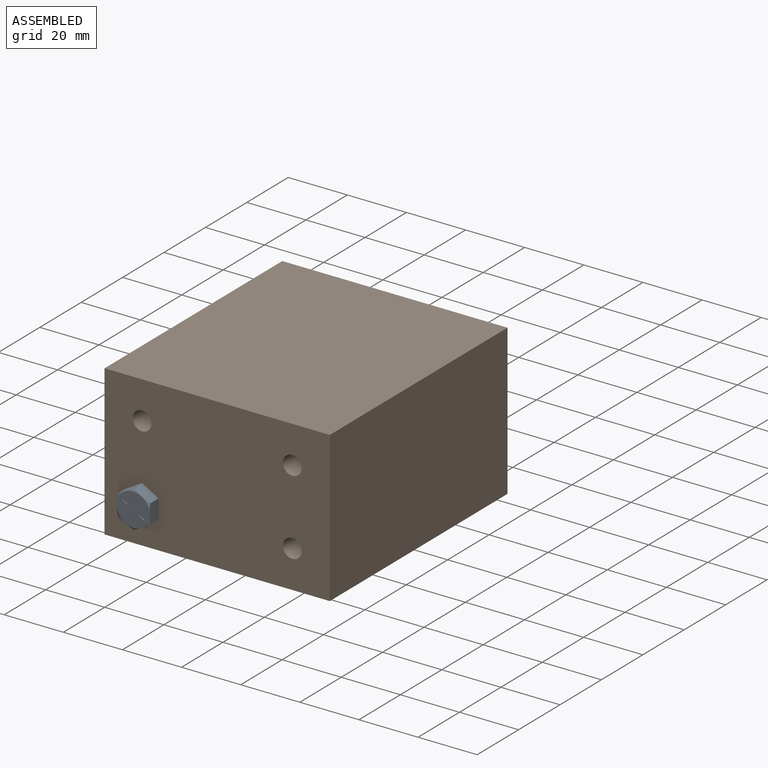
[diagram: assembled view]
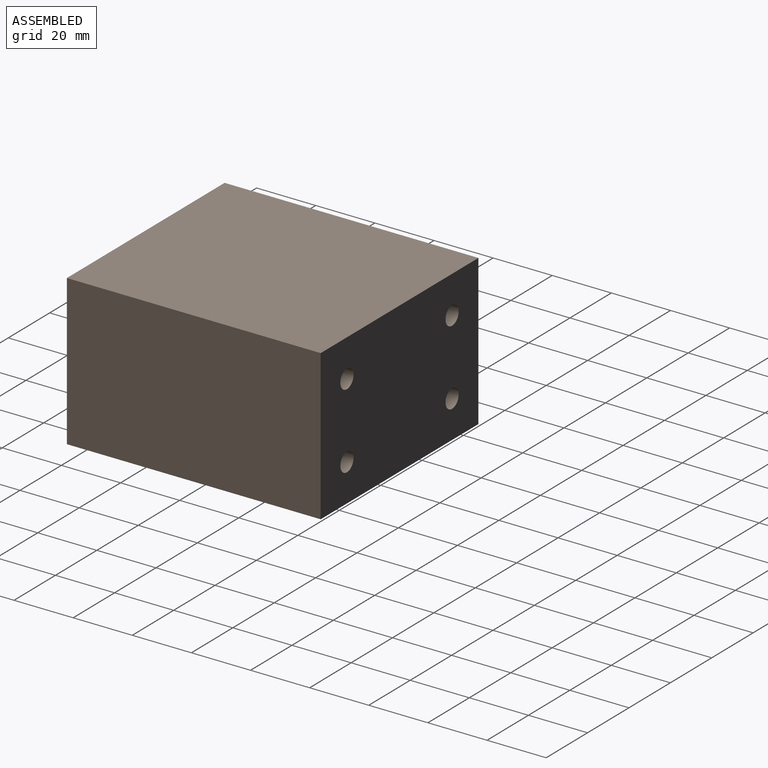
[diagram: assembled view, second angle]
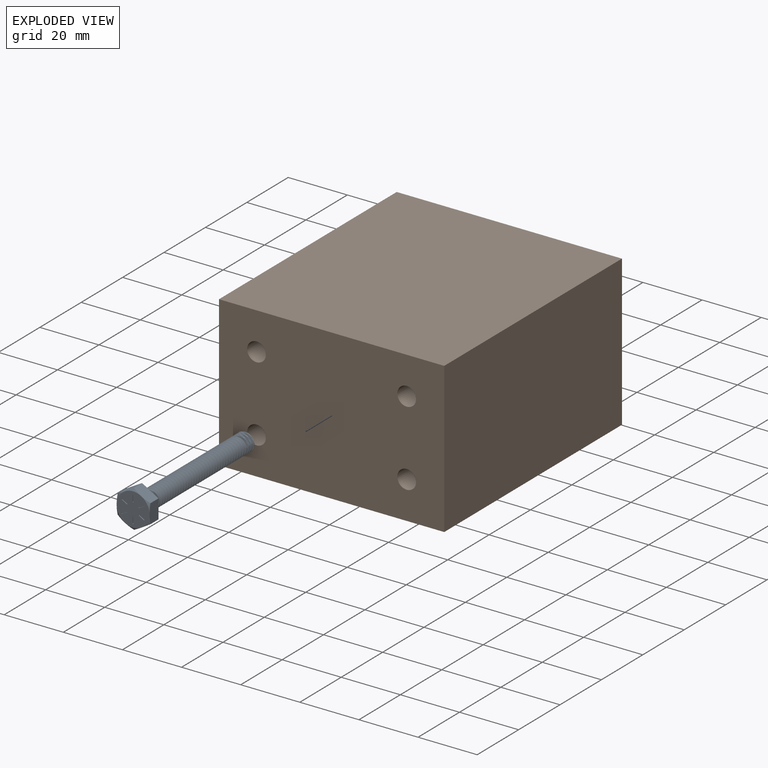
[diagram: exploded view]
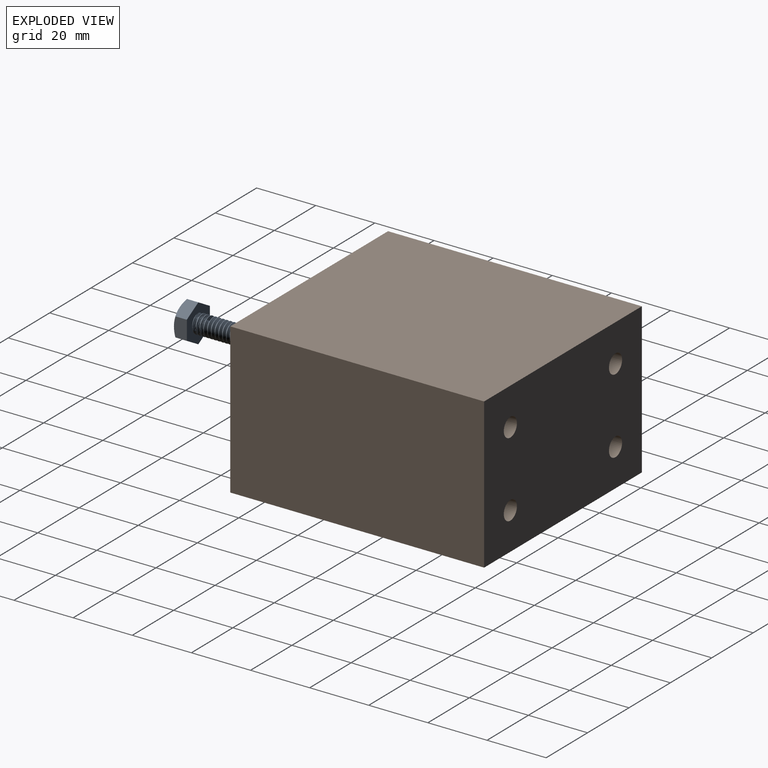
[diagram: exploded view, second angle]
ASSEMBLY  parts=2 mates=2
PART A: 50 faces, bbox 56.5x13.4x13.4 mm
  f0: cylinder r=0.17mm len=0.31mm, axis (-1,0,0), area 0.1mm2, adj f23,f47,f48,f49
  f1: cylinder r=0.17mm len=0.31mm, axis (-1,0,0), area 0.1mm2, adj f23,f43,f44,f45
  f2: cylinder r=0.17mm len=0.31mm, axis (-1,0,0), area 0.1mm2, adj f23,f33,f35,f36
  f3: cylinder r=0.17mm len=0.31mm, axis (-1,0,0), area 0.1mm2, adj f23,f29,f31,f32
  f4: cone r=2.22mm half-angle=45deg, axis (-1,0,0), area 12.3mm2, adj f5,f12,f13,f14,f15
  f5: cylinder r=3.17mm len=49.85mm, axis (1,0,0), area 124.3mm2, adj f4,f14,f15,f16
  f6: plane 6.95x4.9mm, normal (0,-1,0), area 26.9mm2, adj f7,f11,f16,f17,f22
  f7: plane 6.08x4.89mm, normal (0,-0.5,0.87), area 26.9mm2, adj f6,f8,f16,f21,f22
  f8: plane 6.08x4.89mm, normal (0,0.5,0.87), area 26.9mm2, adj f7,f9,f16,f20,f21
  f9: plane 6.95x4.9mm, normal (0,1,0), area 26.9mm2, adj f8,f10,f16,f19,f20
  f10: plane 6.08x4.89mm, normal (0,0.5,-0.87), area 26.9mm2, adj f9,f11,f16,f18,f19
  f11: plane 6.08x4.89mm, normal (0,-0.5,-0.87), area 26.9mm2, adj f6,f10,f16,f17,f18
  f12: plane 4.45x4.45mm, normal (1,0,0), area 15.5mm2, adj f4
  f13: bspline ~51.12x4.7mm, area 93.6mm2, adj f4,f14,f15,f16
  f14: bspline ~51.15x6.35mm, area 656.1mm2, adj f4,f5,f13,f16
  f15: bspline ~52.06x6.35mm, area 657.1mm2, adj f4,f5,f13,f16
  f16: plane 13.32x11.6mm, normal (1,0,0), area 82.7mm2, adj f5,f6,f7,f8,f9,f10,f11,f13
  f17: cone r=5.56mm half-angle=60deg, axis (1,0,0), area 3mm2, adj f6,f11,f23
  f18: cone r=5.56mm half-angle=60deg, axis (1,0,0), area 3mm2, adj f10,f11,f23
  f19: cone r=5.56mm half-angle=60deg, axis (1,0,0), area 3mm2, adj f9,f10,f23
  f20: cone r=5.56mm half-angle=60deg, axis (1,0,0), area 3mm2, adj f8,f9,f23
  f21: cone r=5.56mm half-angle=60deg, axis (1,0,0), area 3mm2, adj f7,f8,f23
  f22: cone r=5.56mm half-angle=60deg, axis (1,0,0), area 3mm2, adj f6,f7,f23
  f23: plane 11.11x11.11mm, normal (-1,0,0), area 92.7mm2, adj f0,f1,f2,f3,f17,f18,f19,f20
  f24: cylinder r=0.17mm len=0.33mm, axis (-1,0,0), area 0.1mm2, adj f23,f25,f27,f28
  f25: plane 1.89x0.25mm, normal (0,1,0), area 0.5mm2, adj f23,f24,f26,f28
  f26: cylinder r=0.17mm len=0.33mm, axis (-1,0,0), area 0.1mm2, adj f23,f25,f27,f28
  f27: plane 1.89x0.25mm, normal (0,-1,0), area 0.5mm2, adj f23,f24,f26,f28
  f28: plane 2.22x0.33mm, normal (-1,0,0), area 0.7mm2, adj f24,f25,f26,f27
  f29: plane 1.64x0.94mm, normal (0,0.5,0.87), area 0.5mm2, adj f3,f23,f30,f32
  f30: cylinder r=0.17mm len=0.31mm, axis (-1,0,0), area 0.1mm2, adj f23,f29,f31,f32
  f31: plane 1.64x0.94mm, normal (0,-0.5,-0.87), area 0.5mm2, adj f3,f23,f30,f32
  f32: plane 1.97x1.28mm, normal (-1,0,0), area 0.7mm2, adj f3,f29,f30,f31
  f33: plane 1.64x0.94mm, normal (0,-0.5,0.87), area 0.5mm2, adj f2,f23,f34,f36
  f34: cylinder r=0.17mm len=0.31mm, axis (-1,0,0), area 0.1mm2, adj f23,f33,f35,f36
  f35: plane 1.64x0.94mm, normal (0,0.5,-0.87), area 0.5mm2, adj f2,f23,f34,f36
  f36: plane 1.97x1.28mm, normal (-1,0,0), area 0.7mm2, adj f2,f33,f34,f35
  f37: cylinder r=0.17mm len=0.33mm, axis (-1,0,0), area 0.1mm2, adj f23,f38,f40,f41
  f38: plane 1.89x0.25mm, normal (0,-1,0), area 0.5mm2, adj f23,f37,f39,f41
  f39: cylinder r=0.17mm len=0.33mm, axis (-1,0,0), area 0.1mm2, adj f23,f38,f40,f41
  f40: plane 1.89x0.25mm, normal (0,1,0), area 0.5mm2, adj f23,f37,f39,f41
  f41: plane 2.22x0.33mm, normal (-1,0,0), area 0.7mm2, adj f37,f38,f39,f40
  f42: cylinder r=0.17mm len=0.31mm, axis (-1,0,0), area 0.1mm2, adj f23,f43,f44,f45
  f43: plane 1.64x0.94mm, normal (0,-0.5,-0.87), area 0.5mm2, adj f1,f23,f42,f45
  f44: plane 1.64x0.94mm, normal (0,0.5,0.87), area 0.5mm2, adj f1,f23,f42,f45
  f45: plane 1.97x1.28mm, normal (-1,0,0), area 0.7mm2, adj f1,f42,f43,f44
  f46: cylinder r=0.17mm len=0.31mm, axis (-1,0,0), area 0.1mm2, adj f23,f47,f48,f49
  f47: plane 1.64x0.94mm, normal (0,0.5,-0.87), area 0.5mm2, adj f0,f23,f46,f49
  f48: plane 1.64x0.94mm, normal (0,-0.5,0.87), area 0.5mm2, adj f0,f23,f46,f49
  f49: plane 1.97x1.28mm, normal (-1,0,0), area 0.7mm2, adj f0,f46,f47,f48
PART B: 10 faces, bbox 76.2x85.9x50.8 mm
  f0: plane 85.85x76.2mm, normal (0,0,1), area 6541.9mm2, adj f1,f7,f8,f9
  f1: plane 85.85x50.8mm, normal (-1,0,0), area 4361.3mm2, adj f0,f2,f8,f9
  f2: plane 85.85x76.2mm, normal (0,0,-1), area 6541.9mm2, adj f1,f7,f8,f9
  f3: cylinder r=3.17mm len=85.85mm, axis (0,1,0), area 1712.7mm2, adj f8,f9
  f4: cylinder r=3.17mm len=85.85mm, axis (0,1,0), area 1712.7mm2, adj f8,f9
  f5: cylinder r=3.17mm len=85.85mm, axis (0,1,0), area 1712.7mm2, adj f8,f9
  f6: cylinder r=3.17mm len=85.85mm, axis (0,1,0), area 1712.7mm2, adj f8,f9
  f7: plane 85.85x50.8mm, normal (1,0,0), area 4361.3mm2, adj f0,f2,f8,f9
  f8: plane 76.2x50.8mm, normal (0,-1,0), area 3744.3mm2, adj f0,f1,f2,f3,f4,f5,f6,f7
  f9: plane 76.2x50.8mm, normal (0,1,0), area 3744.3mm2, adj f0,f1,f2,f3,f4,f5,f6,f7
PLACE A rot(axis=(0,0,1),90deg) t=(-52.34,-41.1,-22.85)mm
PLACE B t=(-26.94,21.53,-10.15)mm
MATE planar B.f8 <-> A.f16  axis (0,-1,0) through (-26.94,-64.32,-10.15)mm
MATE slider A.f4 <-> B.f5  axis (0,-1,0) through (-52.34,-68.68,-22.85)mm
